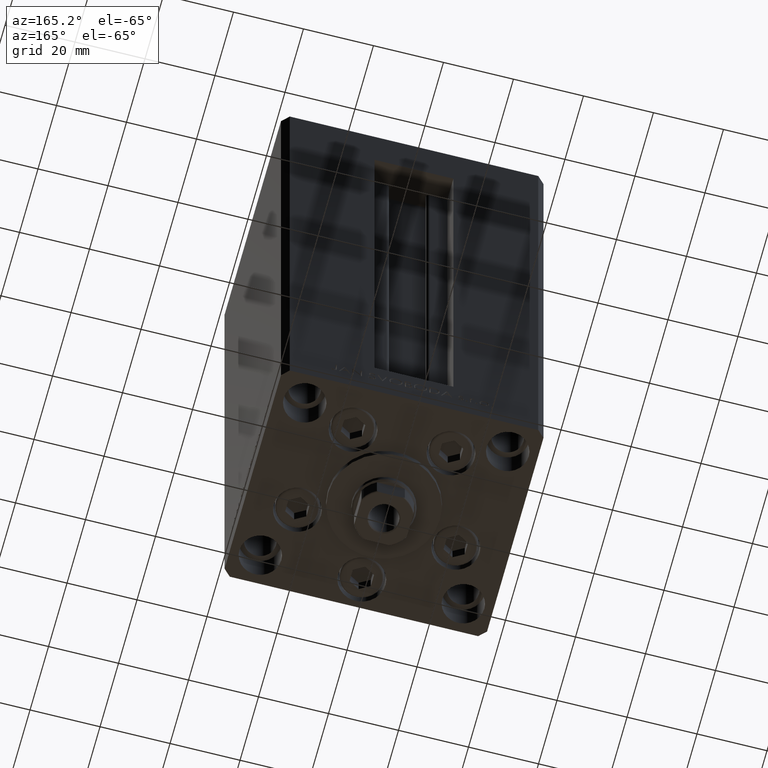
[diagram: clean part render]
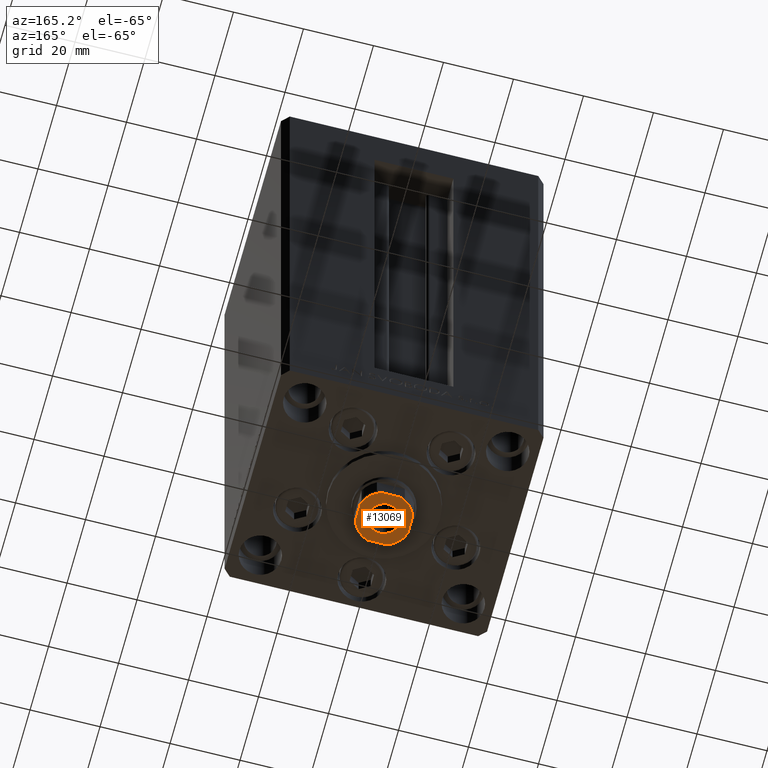
[diagram: same view with one face highlighted and labeled with its STEP entity id]
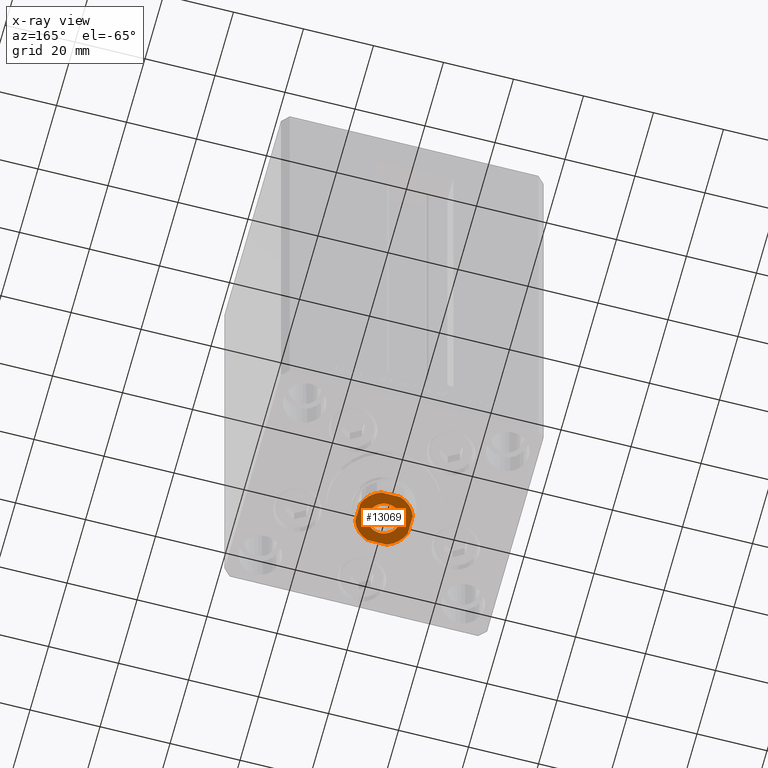
[diagram: x-ray of the same camera — body ghosted, the highlighted face saturated]
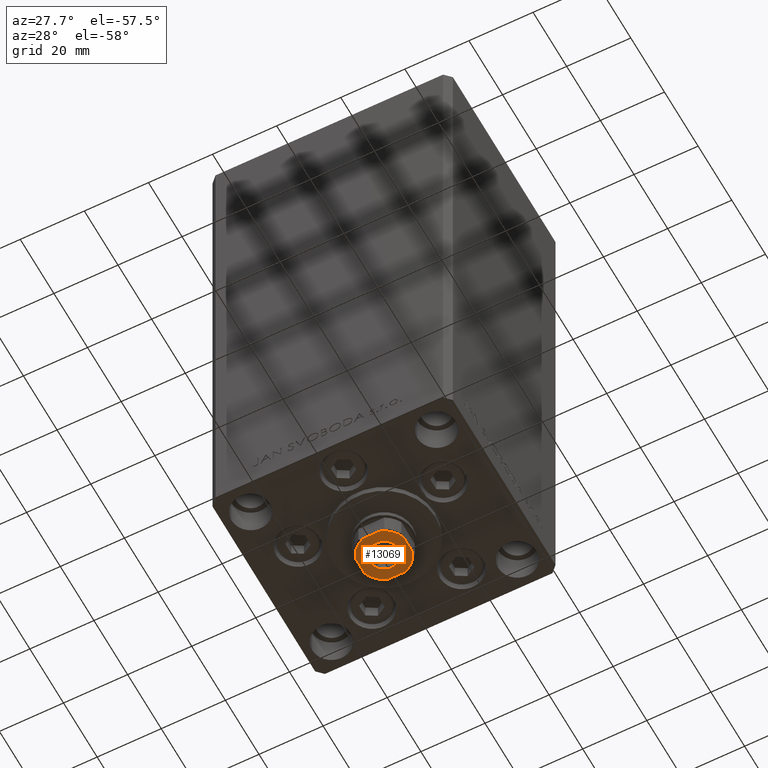
[diagram: same view with one face highlighted and labeled with its STEP entity id]
A machine part, auxiliary view. The second image highlights one B-rep face of the part: STEP entity #13069.
The next image is the same camera in x-ray: the body ghosted, the highlighted face saturated — about 0% of this face is hidden behind the body in this view.
A second angle (auxiliary view) of the same face is appended — the face is thin or edge-on in the first view.
In plain terms, the highlighted planar face has unit normal (0, 0, -1).
Its self-contained STEP definition (entity closure, byte-faithful):
#386 = AXIS2_PLACEMENT_3D ( 'NONE', #26979, #38374, #45790 ) ;
#788 = FACE_BOUND ( 'NONE', #48164, .T. ) ;
#1043 = DIRECTION ( 'NONE',  ( 1.000000000000000000, 0.000000000000000000, 0.000000000000000000 ) ) ;
#2095 = DIRECTION ( 'NONE',  ( 1.000000000000000000, 0.000000000000000000, 0.000000000000000000 ) ) ;
#2572 = DIRECTION ( 'NONE',  ( 0.000000000000000000, -0.000000000000000000, -1.000000000000000000 ) ) ;
#2724 = CARTESIAN_POINT ( 'NONE',  ( -2.783882181415010315, -7.500000000000000888, 148.0000000000000284 ) ) ;
#3155 = VERTEX_POINT ( 'NONE', #14759 ) ;
#3292 = CARTESIAN_POINT ( 'NONE',  ( 0.000000000000000000, 0.000000000000000000, 148.0000000000000284 ) ) ;
#3596 = CIRCLE ( 'NONE', #12274, 8.000000000000000000 ) ;
#4368 = VERTEX_POINT ( 'NONE', #2724 ) ;
#4671 = CARTESIAN_POINT ( 'NONE',  ( 2.783882181415012980, 7.500000000000000000, 148.0000000000000284 ) ) ;
#5108 = LINE ( 'NONE', #31323, #46990 ) ;
#5118 = AXIS2_PLACEMENT_3D ( 'NONE', #39352, #13617, #13129 ) ;
#5981 = AXIS2_PLACEMENT_3D ( 'NONE', #36696, #2572, #2095 ) ;
#6350 = ORIENTED_EDGE ( 'NONE', *, *, #43617, .T. ) ;
#7167 = VECTOR ( 'NONE', #37115, 1000.000000000000000 ) ;
#7372 = VERTEX_POINT ( 'NONE', #31576 ) ;
#7715 = FACE_OUTER_BOUND ( 'NONE', #20903, .T. ) ;
#9196 = DIRECTION ( 'NONE',  ( -0.000000000000000000, 0.000000000000000000, 1.000000000000000000 ) ) ;
#9314 = ORIENTED_EDGE ( 'NONE', *, *, #37435, .T. ) ;
#9941 = CARTESIAN_POINT ( 'NONE',  ( 7.500000000000001776, 7.500000000000000000, 148.0000000000000284 ) ) ;
#10325 = CARTESIAN_POINT ( 'NONE',  ( 0.000000000000000000, 0.000000000000000000, 148.0000000000000284 ) ) ;
#10733 = VECTOR ( 'NONE', #36625, 1000.000000000000000 ) ;
#12274 = AXIS2_PLACEMENT_3D ( 'NONE', #45465, #30860, #26895 ) ;
#12307 = AXIS2_PLACEMENT_3D ( 'NONE', #10325, #26119, #36533 ) ;
#12438 = VERTEX_POINT ( 'NONE', #4671 ) ;
#12723 = VERTEX_POINT ( 'NONE', #26375 ) ;
#13069 = ADVANCED_FACE ( 'NONE', ( #788, #7715 ), #46293, .T. ) ;
#13129 = DIRECTION ( 'NONE',  ( 1.000000000000000000, 0.000000000000000000, 0.000000000000000000 ) ) ;
#13547 = EDGE_CURVE ( 'NONE', #4368, #20591, #5108, .T. ) ;
#13617 = DIRECTION ( 'NONE',  ( -0.000000000000000000, 0.000000000000000000, 1.000000000000000000 ) ) ;
#13672 = CIRCLE ( 'NONE', #42896, 8.000000000000000000 ) ;
#14590 = DIRECTION ( 'NONE',  ( 1.000000000000000000, 0.000000000000000000, 0.000000000000000000 ) ) ;
#14759 = CARTESIAN_POINT ( 'NONE',  ( 7.500000000000000888, -2.783882181415009427, 148.0000000000000284 ) ) ;
#17606 = LINE ( 'NONE', #9941, #7167 ) ;
#18543 = CARTESIAN_POINT ( 'NONE',  ( 0.000000000000000000, 0.000000000000000000, 148.0000000000000284 ) ) ;
#18609 = CIRCLE ( 'NONE', #5981, 4.550000000000012257 ) ;
#19068 = ORIENTED_EDGE ( 'NONE', *, *, #32028, .T. ) ;
#20591 = VERTEX_POINT ( 'NONE', #25007 ) ;
#20590 = EDGE_CURVE ( 'NONE', #3155, #12723, #17606, .T. ) ;
#20903 = EDGE_LOOP ( 'NONE', ( #6350, #9314, #31295, #19068, #35001, #35852, #45667, #42923 ) ) ;
#21531 = CARTESIAN_POINT ( 'NONE',  ( -7.499999999999998224, 7.499999999999999112, 148.0000000000000284 ) ) ;
#23189 = ORIENTED_EDGE ( 'NONE', *, *, #38368, .T. ) ;
#24637 = ORIENTED_EDGE ( 'NONE', *, *, #34098, .T. ) ;
#24750 = LINE ( 'NONE', #21531, #10733 ) ;
#24891 = CARTESIAN_POINT ( 'NONE',  ( -2.783882181415013868, 7.499999999999999112, 148.0000000000000284 ) ) ;
#25007 = CARTESIAN_POINT ( 'NONE',  ( 2.783882181415008539, -7.500000000000000888, 148.0000000000000284 ) ) ;
#25040 = DIRECTION ( 'NONE',  ( 5.782411586589357392E-17, -1.000000000000000000, 0.000000000000000000 ) ) ;
#25237 = EDGE_CURVE ( 'NONE', #12723, #12438, #38086, .T. ) ;
#26045 = EDGE_CURVE ( 'NONE', #35745, #7372, #13672, .T. ) ;
#26119 = DIRECTION ( 'NONE',  ( 0.000000000000000000, -0.000000000000000000, -1.000000000000000000 ) ) ;
#26375 = CARTESIAN_POINT ( 'NONE',  ( 7.500000000000000888, 2.783882181415007206, 148.0000000000000284 ) ) ;
#26895 = DIRECTION ( 'NONE',  ( 1.000000000000000000, 0.000000000000000000, 0.000000000000000000 ) ) ;
#26979 = CARTESIAN_POINT ( 'NONE',  ( 0.000000000000000000, 0.000000000000000000, 148.0000000000000284 ) ) ;
#27671 = CARTESIAN_POINT ( 'NONE',  ( -7.499999999999998224, -2.783882181415016088, 148.0000000000000284 ) ) ;
#27935 = VERTEX_POINT ( 'NONE', #27671 ) ;
#30359 = VERTEX_POINT ( 'NONE', #38004 ) ;
#30483 = CIRCLE ( 'NONE', #12307, 4.550000000000012257 ) ;
#30860 = DIRECTION ( 'NONE',  ( -0.000000000000000000, 0.000000000000000000, 1.000000000000000000 ) ) ;
#31072 = DIRECTION ( 'NONE',  ( 1.000000000000000000, 5.782411586589358625E-17, 0.000000000000000000 ) ) ;
#31295 = ORIENTED_EDGE ( 'NONE', *, *, #13547, .T. ) ;
#31323 = CARTESIAN_POINT ( 'NONE',  ( -7.499999999999997335, -7.500000000000000888, 148.0000000000000284 ) ) ;
#31576 = CARTESIAN_POINT ( 'NONE',  ( -7.499999999999998224, 2.783882181415015644, 148.0000000000000284 ) ) ;
#32028 = EDGE_CURVE ( 'NONE', #20591, #3155, #34337, .T. ) ;
#33295 = VERTEX_POINT ( 'NONE', #48679 ) ;
#33818 = EDGE_CURVE ( 'NONE', #12438, #35745, #24750, .T. ) ;
#34098 = EDGE_CURVE ( 'NONE', #33295, #30359, #18609, .T. ) ;
#34337 = CIRCLE ( 'NONE', #5118, 8.000000000000000000 ) ;
#35001 = ORIENTED_EDGE ( 'NONE', *, *, #20590, .T. ) ;
#35745 = VERTEX_POINT ( 'NONE', #24891 ) ;
#35852 = ORIENTED_EDGE ( 'NONE', *, *, #25237, .T. ) ;
#36191 = VECTOR ( 'NONE', #25040, 1000.000000000000000 ) ;
#36533 = DIRECTION ( 'NONE',  ( 1.000000000000000000, 0.000000000000000000, 0.000000000000000000 ) ) ;
#36625 = DIRECTION ( 'NONE',  ( -1.000000000000000000, -5.782411586589357392E-17, -0.000000000000000000 ) ) ;
#36696 = CARTESIAN_POINT ( 'NONE',  ( 0.000000000000000000, 0.000000000000000000, 148.0000000000000284 ) ) ;
#37115 = DIRECTION ( 'NONE',  ( 1.156482317317871478E-16, 1.000000000000000000, -0.000000000000000000 ) ) ;
#37435 = EDGE_CURVE ( 'NONE', #27935, #4368, #3596, .T. ) ;
#38004 = CARTESIAN_POINT ( 'NONE',  ( 4.550000000000012257, 0.000000000000000000, 148.0000000000000284 ) ) ;
#38086 = CIRCLE ( 'NONE', #45992, 8.000000000000000000 ) ;
#38368 = EDGE_CURVE ( 'NONE', #30359, #33295, #30483, .T. ) ;
#38374 = DIRECTION ( 'NONE',  ( -0.000000000000000000, 0.000000000000000000, 1.000000000000000000 ) ) ;
#39164 = LINE ( 'NONE', #46587, #36191 ) ;
#39352 = CARTESIAN_POINT ( 'NONE',  ( 0.000000000000000000, 0.000000000000000000, 148.0000000000000284 ) ) ;
#42896 = AXIS2_PLACEMENT_3D ( 'NONE', #18543, #48730, #14590 ) ;
#42923 = ORIENTED_EDGE ( 'NONE', *, *, #26045, .T. ) ;
#43617 = EDGE_CURVE ( 'NONE', #7372, #27935, #39164, .T. ) ;
#45465 = CARTESIAN_POINT ( 'NONE',  ( 0.000000000000000000, 0.000000000000000000, 148.0000000000000284 ) ) ;
#45667 = ORIENTED_EDGE ( 'NONE', *, *, #33818, .T. ) ;
#45790 = DIRECTION ( 'NONE',  ( 1.000000000000000000, 0.000000000000000000, 0.000000000000000000 ) ) ;
#45992 = AXIS2_PLACEMENT_3D ( 'NONE', #3292, #9196, #1043 ) ;
#46293 = PLANE ( 'NONE',  #386 ) ;
#46587 = CARTESIAN_POINT ( 'NONE',  ( -7.499999999999998224, 7.499999999999999112, 148.0000000000000284 ) ) ;
#46990 = VECTOR ( 'NONE', #31072, 1000.000000000000000 ) ;
#48164 = EDGE_LOOP ( 'NONE', ( #23189, #24637 ) ) ;
#48679 = CARTESIAN_POINT ( 'NONE',  ( -4.550000000000012257, 5.572142936120472118E-16, 148.0000000000000284 ) ) ;
#48730 = DIRECTION ( 'NONE',  ( -0.000000000000000000, 0.000000000000000000, 1.000000000000000000 ) ) ;